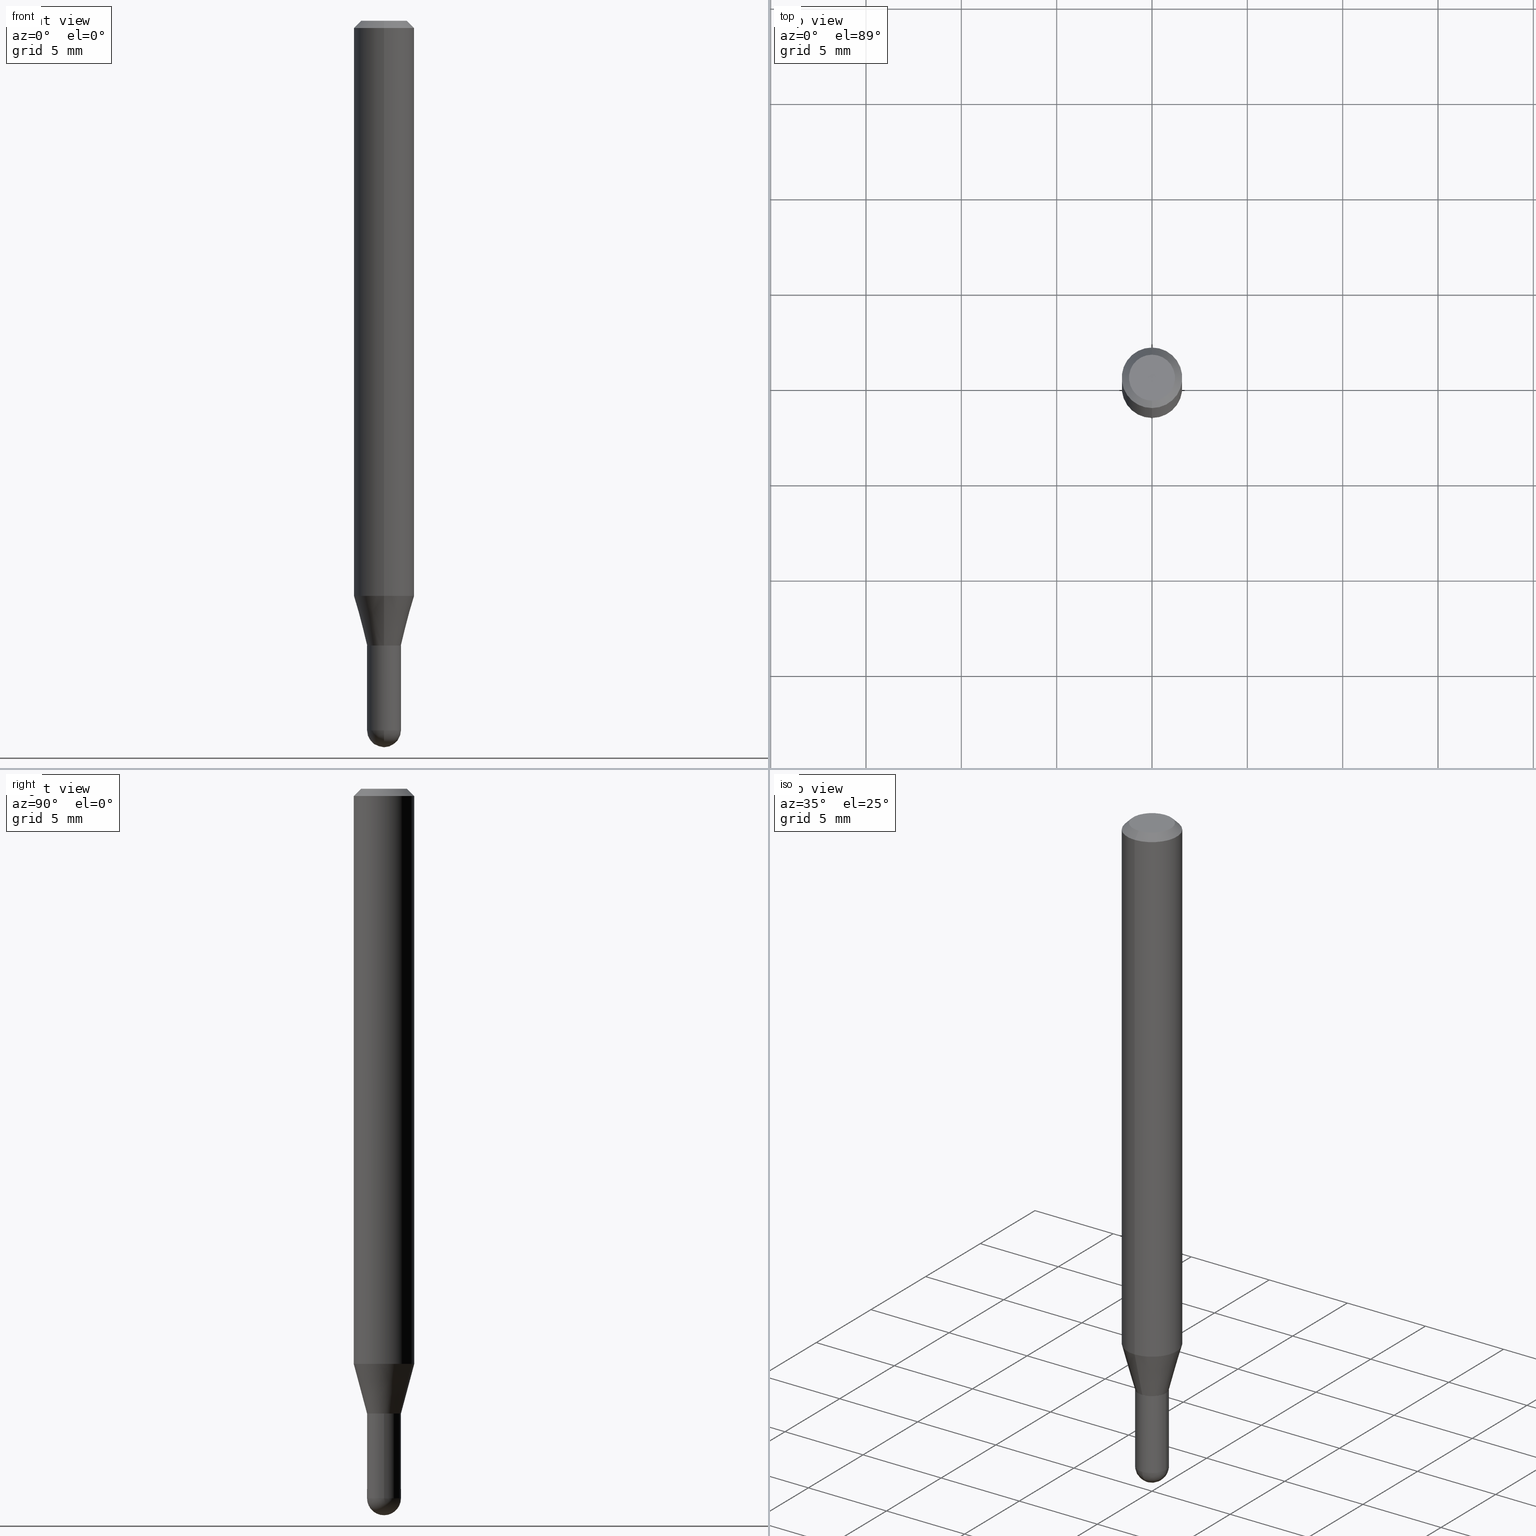
[diagram: canonical four-view strip — front | top / right | iso, engineering-drawing reading convention]
A machine part, canonical four-view strip (front | top / right | iso — engineering-drawing reading convention). The complete STEP part file that produces these views, byte-faithful:
ISO-10303-21;
HEADER;
FILE_DESCRIPTION (( 'STEP AP203' ),
    '1' );
FILE_NAME ('04441.STEP',
    '2024-03-08T19:33:33',
    ( '' ),
    ( '' ),
    'SwSTEP 2.0',
    'SolidWorks 2023',
    '' );
FILE_SCHEMA (( 'CONFIG_CONTROL_DESIGN' ));
ENDSEC;

DATA;
#1 = EDGE_CURVE ( 'NONE', #69, #152, #226, .T. ) ;
#2 = DIRECTION ( 'NONE',  ( -6.982962677686265922E-15, -1.000000000000000000, 3.483106191921935554E-15 ) ) ;
#3 = FACE_OUTER_BOUND ( 'NONE', #250, .T. ) ;
#4 =( LENGTH_UNIT ( ) NAMED_UNIT ( * ) SI_UNIT ( $, .METRE. ) );
#5 = PLANE ( 'NONE',  #210 ) ;
#6 = ADVANCED_FACE ( 'NONE', ( #47 ), #305, .T. ) ;
#7 = VECTOR ( 'NONE', #500, 39.37007874015748143 ) ;
#8 = CARTESIAN_POINT ( 'NONE',  ( 3.154508998517573642E-29, -4.504219665816401334E-15, -1.290000000000000480 ) ) ;
#9 = PERSON_AND_ORGANIZATION ( #112, #90 ) ;
#10 = AXIS2_PLACEMENT_3D ( 'NONE', #114, #147, #417 ) ;
#11 = EDGE_CURVE ( 'NONE', #300, #98, #400, .T. ) ;
#12 = EDGE_LOOP ( 'NONE', ( #110, #325, #220, #182, #302 ) ) ;
#13 = ADVANCED_FACE ( 'NONE', ( #194 ), #5, .F. ) ;
#14 = DATE_AND_TIME ( #52, #324 ) ;
#15 = CC_DESIGN_APPROVAL ( #491, ( #115 ) ) ;
#16 = CONICAL_SURFACE ( 'NONE', #238, 0.03450000000000000289, 0.7853981633969275844 ) ;
#17 = AXIS2_PLACEMENT_3D ( 'NONE', #499, #215, #20 ) ;
#18 = ORIENTED_EDGE ( 'NONE', *, *, #405, .F. ) ;
#19 = ADVANCED_FACE ( 'NONE', ( #353 ), #16, .T. ) ;
#20 = DIRECTION ( 'NONE',  ( -6.982962677686266711E-15, -1.000000000000000000, 3.491643151795659524E-15 ) ) ;
#21 = VERTEX_POINT ( 'NONE', #49 ) ;
#22 = CC_DESIGN_DATE_AND_TIME_ASSIGNMENT ( #25, #496, ( #115 ) ) ;
#23 = LINE ( 'NONE', #244, #470 ) ;
#24 = DIRECTION ( 'NONE',  ( -2.445355812804319673E-29, 3.491643151795659130E-15, 1.000000000000000000 ) ) ;
#25 = DATE_AND_TIME ( #61, #211 ) ;
#26 = AXIS2_PLACEMENT_3D ( 'NONE', #471, #217, #377 ) ;
#27 = APPLICATION_CONTEXT ( 'configuration controlled 3d designs of mechanical parts and assemblies' ) ;
#28 = CARTESIAN_POINT ( 'NONE',  ( 0.03500000000000000333, -4.748414620826678245E-15, -1.290000000000000258 ) ) ;
#29 = VECTOR ( 'NONE', #72, 39.37007874015748143 ) ;
#30 = DIRECTION ( 'NONE',  ( -2.445355812804319953E-29, 3.491643151795659524E-15, 1.000000000000000000 ) ) ;
#31 = DIRECTION ( 'NONE',  ( -2.445355812804319673E-29, 3.491643151795659130E-15, 1.000000000000000000 ) ) ;
#32 = ORIENTED_EDGE ( 'NONE', *, *, #68, .F. ) ;
#33 = DIRECTION ( 'NONE',  ( 7.105427357601001859E-15, 1.000000000000000000, 0.000000000000000000 ) ) ;
#34 = CARTESIAN_POINT ( 'NONE',  ( 3.154508998517573642E-29, -4.504219665816401334E-15, -1.290000000000000480 ) ) ;
#35 = MANIFOLD_SOLID_BREP ( 'Body-Move/Copy2[2]', #481 ) ;
#36 = ORIENTED_EDGE ( 'NONE', *, *, #121, .T. ) ;
#37 = CARTESIAN_POINT ( 'NONE',  ( 3.582611801061224486E-29, -5.115020161405207405E-15, -1.464999999999999858 ) ) ;
#38 = DIRECTION ( 'NONE',  ( -6.982962677686265922E-15, -1.000000000000000000, 3.491643151795659130E-15 ) ) ;
#39 = CIRCLE ( 'NONE', #231, 0.03500000000000000333 ) ;
#40 = EDGE_LOOP ( 'NONE', ( #443, #365, #66, #358 ) ) ;
#41 = EDGE_CURVE ( 'NONE', #21, #381, #189, .T. ) ;
#42 = AXIS2_PLACEMENT_3D ( 'NONE', #368, #407, #38 ) ;
#43 = DIRECTION ( 'NONE',  ( -1.807323732225383782E-15, -0.2588190451025258465, 0.9659258262890669799 ) ) ;
#44 = EDGE_LOOP ( 'NONE', ( #223, #362, #94, #494 ) ) ;
#45 = CARTESIAN_POINT ( 'NONE',  ( 3.668033719206495817E-31, -5.237464727693512311E-17, -0.01500000000000006710 ) ) ;
#46 = CC_DESIGN_PERSON_AND_ORGANIZATION_ASSIGNMENT ( #315, #277, ( #476 ) ) ;
#47 = FACE_OUTER_BOUND ( 'NONE', #12, .T. ) ;
#48 = CARTESIAN_POINT ( 'NONE',  ( 3.579618719049097467E-29, -5.119306425202223514E-15, -1.465000000000000080 ) ) ;
#49 = CARTESIAN_POINT ( 'NONE',  ( 3.463895836830799138E-16, 0.03499999999999569428, -1.290000000000000258 ) ) ;
#50 = FACE_OUTER_BOUND ( 'NONE', #268, .T. ) ;
#51 = CIRCLE ( 'NONE', #477, 0.06250000000000000000 ) ;
#52 = CALENDAR_DATE ( 2024, 8, 3 ) ;
#53 = EDGE_CURVE ( 'NONE', #21, #74, #155, .T. ) ;
#54 = APPROVAL_STATUS ( 'not_yet_approved' ) ;
#55 = ADVANCED_FACE ( 'NONE', ( #233 ), #310, .T. ) ;
#56 = ADVANCED_FACE ( 'NONE', ( #3 ), #257, .F. ) ;
#57 = APPLICATION_PROTOCOL_DEFINITION ( 'international standard', 'config_control_design', 1994, #27 ) ;
#58 = DIRECTION ( 'NONE',  ( -2.445468806185136597E-29, 3.491481338843145583E-15, 1.000000000000000000 ) ) ;
#59 = AXIS2_PLACEMENT_3D ( 'NONE', #37, #260, #230 ) ;
#60 = ORIENTED_EDGE ( 'NONE', *, *, #431, .F. ) ;
#61 = CALENDAR_DATE ( 2024, 8, 3 ) ;
#62 = CARTESIAN_POINT ( 'NONE',  ( 3.154508998517572521E-29, -4.504219665816400546E-15, -1.290000000000000258 ) ) ;
#63 = DIRECTION ( 'NONE',  ( -6.982962677686265922E-15, -1.000000000000000000, 4.370956789862821150E-15 ) ) ;
#64 = DIRECTION ( 'NONE',  ( -2.445355812804319673E-29, 3.491643151795659130E-15, 1.000000000000000000 ) ) ;
#65 = CARTESIAN_POINT ( 'NONE',  ( -0.03500000000000000333, -4.560825586740397161E-15, -1.464999999999999858 ) ) ;
#66 = ORIENTED_EDGE ( 'NONE', *, *, #351, .T. ) ;
#67 = CARTESIAN_POINT ( 'NONE',  ( 0.000000000000000000, 0.000000000000000000, 0.000000000000000000 ) ) ;
#68 = EDGE_CURVE ( 'NONE', #385, #280, #254, .T. ) ;
#69 = VERTEX_POINT ( 'NONE', #364 ) ;
#70 = AXIS2_PLACEMENT_3D ( 'NONE', #289, #461, #219 ) ;
#71 = CARTESIAN_POINT ( 'NONE',  ( 4.364351673553919652E-16, 0.06249999999999995143, -0.01500000000000028394 ) ) ;
#72 = DIRECTION ( 'NONE',  ( -4.851104656540964275E-15, -0.7071067811865500152, -0.7071067811865450192 ) ) ;
#73 = ADVANCED_FACE ( 'NONE', ( #97 ), #92, .T. ) ;
#74 = VERTEX_POINT ( 'NONE', #213 ) ;
#75 = CARTESIAN_POINT ( 'NONE',  ( 3.154508998517572521E-29, -4.504219665816400546E-15, -1.290000000000000258 ) ) ;
#76 = FACE_OUTER_BOUND ( 'NONE', #172, .T. ) ;
#77 = ORIENTED_EDGE ( 'NONE', *, *, #387, .F. ) ;
#78 = CARTESIAN_POINT ( 'NONE',  ( 3.840629472727447874E-16, 0.04749999999999999362, -2.313455976474456035E-16 ) ) ;
#79 =( GEOMETRIC_REPRESENTATION_CONTEXT ( 3 ) GLOBAL_UNCERTAINTY_ASSIGNED_CONTEXT ( ( #408 ) ) GLOBAL_UNIT_ASSIGNED_CONTEXT ( ( #313, #129, #357 ) ) REPRESENTATION_CONTEXT ( 'NONE', 'WORKASPACE' ) );
#80 = EDGE_LOOP ( 'NONE', ( #164, #422, #360, #145 ) ) ;
#81 = CIRCLE ( 'NONE', #355, 0.03499999999999964945 ) ;
#82 = DIRECTION ( 'NONE',  ( -2.445355812804319673E-29, 3.491643151795659130E-15, 1.000000000000000000 ) ) ;
#83 = DIRECTION ( 'NONE',  ( -2.445355812804319953E-29, 3.491643151795659524E-15, 1.000000000000000000 ) ) ;
#84 = DIRECTION ( 'NONE',  ( -6.982962677686265133E-15, -1.000000000000000000, 0.000000000000000000 ) ) ;
#85 = ADVANCED_FACE ( 'NONE', ( #76 ), #135, .T. ) ;
#86 = DIRECTION ( 'NONE',  ( -6.982962677686267499E-15, -1.000000000000000000, 0.000000000000000000 ) ) ;
#87 = CC_DESIGN_SECURITY_CLASSIFICATION ( #115, ( #476 ) ) ;
#88 = VECTOR ( 'NONE', #449, 39.37007874015748143 ) ;
#89 = AXIS2_PLACEMENT_3D ( 'NONE', #379, #473, #84 ) ;
#90 = ORGANIZATION ( 'UNSPECIFIED', 'UNSPECIFIED', '' ) ;
#91 = PERSON_AND_ORGANIZATION_ROLE ( 'classification_officer' ) ;
#92 = CONICAL_SURFACE ( 'NONE', #118, 0.03450000000000000289, 0.7853981633969275844 ) ;
#93 = EDGE_CURVE ( 'NONE', #139, #74, #284, .T. ) ;
#94 = ORIENTED_EDGE ( 'NONE', *, *, #487, .F. ) ;
#95 = EDGE_LOOP ( 'NONE', ( #485, #426 ) ) ;
#96 = DIRECTION ( 'NONE',  ( 4.937700262164548042E-15, 0.7071067811865451302, -0.7071067811865499042 ) ) ;
#97 = FACE_OUTER_BOUND ( 'NONE', #40, .T. ) ;
#98 = VERTEX_POINT ( 'NONE', #293 ) ;
#99 = CARTESIAN_POINT ( 'NONE',  ( 2.486899575160709326E-16, 0.03499999999999489630, -1.464999999999999858 ) ) ;
#100 = CIRCLE ( 'NONE', #89, 0.03450000000000000289 ) ;
#101 = DIRECTION ( 'NONE',  ( -2.445355812804319673E-29, 3.491643151795659130E-15, 1.000000000000000000 ) ) ;
#102 = CLOSED_SHELL ( 'NONE', ( #232, #395, #13, #55, #6 ) ) ;
#103 = ORIENTED_EDGE ( 'NONE', *, *, #253, .F. ) ;
#104 = LINE ( 'NONE', #295, #255 ) ;
#105 = DIRECTION ( 'NONE',  ( -6.982962677686265922E-15, -1.000000000000000000, 0.000000000000000000 ) ) ;
#106 = PERSON_AND_ORGANIZATION ( #112, #90 ) ;
#107 = ORIENTED_EDGE ( 'NONE', *, *, #1, .T. ) ;
#108 = CARTESIAN_POINT ( 'NONE',  ( -2.409122123801446155E-16, -0.03450000000000450623, -1.290000000000000480 ) ) ;
#109 = CARTESIAN_POINT ( 'NONE',  ( 2.451372438372660898E-16, 0.03449999999999549954, -1.290000000000000480 ) ) ;
#110 = ORIENTED_EDGE ( 'NONE', *, *, #373, .F. ) ;
#111 = CARTESIAN_POINT ( 'NONE',  ( 4.440892098500914096E-16, 0.06249999999999581585, -1.187368602791860628 ) ) ;
#112 = PERSON ( 'UNSPECIFIED', 'UNSPECIFIED', 'UNSPECIFIED', ('UNSPECIFIED'), ('UNSPECIFIED'), ('UNSPECIFIED') ) ;
#113 = ORIENTED_EDGE ( 'NONE', *, *, #330, .T. ) ;
#114 = CARTESIAN_POINT ( 'NONE',  ( 0.000000000000000000, 0.000000000000000000, 0.000000000000000000 ) ) ;
#115 = SECURITY_CLASSIFICATION ( '', '', #130 ) ;
#116 = ORIENTED_EDGE ( 'NONE', *, *, #128, .T. ) ;
#117 = ADVANCED_FACE ( 'NONE', ( #323 ), #144, .F. ) ;
#118 = AXIS2_PLACEMENT_3D ( 'NONE', #34, #171, #414 ) ;
#119 = DIRECTION ( 'NONE',  ( -2.445468806185136597E-29, 3.491481338843145583E-15, 1.000000000000000000 ) ) ;
#120 = EDGE_LOOP ( 'NONE', ( #444, #261, #404, #246, #243 ) ) ;
#121 = EDGE_CURVE ( 'NONE', #152, #74, #81, .T. ) ;
#122 = ADVANCED_BREP_SHAPE_REPRESENTATION ( '04441', ( #192, #35, #133 ), #79 ) ;
#123 = DIRECTION ( 'NONE',  ( -2.445355812804319673E-29, 3.491643151795659130E-15, 1.000000000000000000 ) ) ;
#124 = DIRECTION ( 'NONE',  ( -2.445468806185136877E-29, 3.491481338843145188E-15, 1.000000000000000000 ) ) ;
#125 = AXIS2_PLACEMENT_3D ( 'NONE', #299, #123, #225 ) ;
#126 = CARTESIAN_POINT ( 'NONE',  ( 3.579618719049097467E-29, -5.119306425202223514E-15, -1.465000000000000080 ) ) ;
#127 = AXIS2_PLACEMENT_3D ( 'NONE', #291, #245, #63 ) ;
#128 = EDGE_CURVE ( 'NONE', #187, #388, #190, .T. ) ;
#129 =( NAMED_UNIT ( * ) PLANE_ANGLE_UNIT ( ) SI_UNIT ( $, .RADIAN. ) );
#130 = SECURITY_CLASSIFICATION_LEVEL ( 'unclassified' ) ;
#131 = CIRCLE ( 'NONE', #17, 0.04749999999999999362 ) ;
#132 = CARTESIAN_POINT ( 'NONE',  ( 4.440892098500919026E-16, 0.06249999999999995837, -0.01500000000000028394 ) ) ;
#133 = AXIS2_PLACEMENT_3D ( 'NONE', #311, #356, #236 ) ;
#134 = LINE ( 'NONE', #287, #88 ) ;
#135 = CYLINDRICAL_SURFACE ( 'NONE', #42, 0.06250000000000000000 ) ;
#136 = AXIS2_PLACEMENT_3D ( 'NONE', #370, #58, #143 ) ;
#137 = VERTEX_POINT ( 'NONE', #65 ) ;
#138 = FACE_OUTER_BOUND ( 'NONE', #150, .T. ) ;
#139 = VERTEX_POINT ( 'NONE', #174 ) ;
#140 = CARTESIAN_POINT ( 'NONE',  ( -4.364351673553628760E-16, -0.06250000000000417721, -1.187368602791860184 ) ) ;
#141 = VECTOR ( 'NONE', #83, 39.37007874015748143 ) ;
#142 = ORIENTED_EDGE ( 'NONE', *, *, #93, .T. ) ;
#143 = DIRECTION ( 'NONE',  ( 1.000000000000000000, -6.982962677686276966E-15, 0.000000000000000000 ) ) ;
#144 = PLANE ( 'NONE',  #70 ) ;
#145 = ORIENTED_EDGE ( 'NONE', *, *, #1, .F. ) ;
#146 = CIRCLE ( 'NONE', #59, 0.03500000000000000333 ) ;
#147 = DIRECTION ( 'NONE',  ( -2.445355812804319673E-29, 3.491643151795659130E-15, 1.000000000000000000 ) ) ;
#148 = ORIENTED_EDGE ( 'NONE', *, *, #248, .T. ) ;
#149 = DIRECTION ( 'NONE',  ( -6.982962677686265922E-15, -1.000000000000000000, 3.483106191921935554E-15 ) ) ;
#150 = EDGE_LOOP ( 'NONE', ( #286, #497, #338, #462 ) ) ;
#151 = DIRECTION ( 'NONE',  ( -2.445468806185136597E-29, 3.491481338843145583E-15, 1.000000000000000000 ) ) ;
#152 = VERTEX_POINT ( 'NONE', #447 ) ;
#153 = AXIS2_PLACEMENT_3D ( 'NONE', #493, #173, #249 ) ;
#154 = CARTESIAN_POINT ( 'NONE',  ( 0.03500000000000000333, -5.053919237975452413E-15, -1.464999999999999858 ) ) ;
#155 = LINE ( 'NONE', #309, #183 ) ;
#156 = CARTESIAN_POINT ( 'NONE',  ( 3.154508998517572521E-29, -4.504219665816400546E-15, -1.290000000000000258 ) ) ;
#157 = PRODUCT_DEFINITION ( 'UNKNOWN', '', #476, #442 ) ;
#158 = APPROVAL_PERSON_ORGANIZATION ( #106, #491, #177 ) ;
#159 = PERSON_AND_ORGANIZATION ( #112, #90 ) ;
#160 = DIRECTION ( 'NONE',  ( -2.445355812804319673E-29, 3.491643151795659130E-15, 1.000000000000000000 ) ) ;
#161 = CIRCLE ( 'NONE', #441, 0.03450000000000000289 ) ;
#162 = COORDINATED_UNIVERSAL_TIME_OFFSET ( 5, 0, .BEHIND. ) ;
#163 = EDGE_CURVE ( 'NONE', #329, #381, #393, .T. ) ;
#164 = ORIENTED_EDGE ( 'NONE', *, *, #432, .F. ) ;
#165 = CC_DESIGN_APPROVAL ( #430, ( #476 ) ) ;
#166 = DATE_TIME_ROLE ( 'creation_date' ) ;
#167 = ORIENTED_EDGE ( 'NONE', *, *, #482, .T. ) ;
#168 = EDGE_CURVE ( 'NONE', #300, #319, #306, .T. ) ;
#169 = ORIENTED_EDGE ( 'NONE', *, *, #163, .T. ) ;
#170 = DIRECTION ( 'NONE',  ( -2.445355812804319673E-29, 3.491643151795659130E-15, 1.000000000000000000 ) ) ;
#171 = DIRECTION ( 'NONE',  ( -2.445355812804319673E-29, 3.491643151795659130E-15, 1.000000000000000000 ) ) ;
#172 = EDGE_LOOP ( 'NONE', ( #103, #148, #209, #18 ) ) ;
#173 = DIRECTION ( 'NONE',  ( -2.445355812804319673E-29, 3.491643151795659130E-15, 1.000000000000000000 ) ) ;
#174 = CARTESIAN_POINT ( 'NONE',  ( 2.469136006766646655E-16, 0.03449999999999549954, -1.290000000000000480 ) ) ;
#175 = ORIENTED_EDGE ( 'NONE', *, *, #53, .F. ) ;
#176 = CYLINDRICAL_SURFACE ( 'NONE', #288, 0.03499999999999992700 ) ;
#177 = APPROVAL_ROLE ( '' ) ;
#178 = CARTESIAN_POINT ( 'NONE',  ( 3.579618719049097467E-29, -5.119306425202223514E-15, -1.465000000000000080 ) ) ;
#179 = CIRCLE ( 'NONE', #454, 0.03500000000000019762 ) ;
#180 = CC_DESIGN_PERSON_AND_ORGANIZATION_ASSIGNMENT ( #276, #359, ( #157 ) ) ;
#181 = CALENDAR_DATE ( 2024, 8, 3 ) ;
#182 = ORIENTED_EDGE ( 'NONE', *, *, #464, .T. ) ;
#183 = VECTOR ( 'NONE', #270, 39.37007874015748143 ) ;
#184 = CARTESIAN_POINT ( 'NONE',  ( 3.582611801061224486E-29, -5.115020161405207405E-15, -1.464999999999999858 ) ) ;
#185 = CARTESIAN_POINT ( 'NONE',  ( -2.444036937190187827E-16, -0.03499999999999992700, 1.222075103128478112E-16 ) ) ;
#186 = PLANE ( 'NONE',  #316 ) ;
#187 = VERTEX_POINT ( 'NONE', #28 ) ;
#188 = DIRECTION ( 'NONE',  ( -6.982962677686265133E-15, -1.000000000000000000, 0.000000000000000000 ) ) ;
#189 = LINE ( 'NONE', #347, #354 ) ;
#190 = CIRCLE ( 'NONE', #484, 0.03500000000000000333 ) ;
#191 = CARTESIAN_POINT ( 'NONE',  ( 0.03500000000000000333, -2.444036937190193250E-16, 1.706661871528577808E-30 ) ) ;
#192 = MANIFOLD_SOLID_BREP ( 'Body-Move/Copy2[1]', #102 ) ;
#193 = APPROVAL_ROLE ( '' ) ;
#194 = FACE_OUTER_BOUND ( 'NONE', #458, .T. ) ;
#195 = COORDINATED_UNIVERSAL_TIME_OFFSET ( 5, 0, .BEHIND. ) ;
#196 = CIRCLE ( 'NONE', #136, 0.03500000000000000333 ) ;
#197 = ADVANCED_FACE ( 'NONE', ( #202 ), #176, .F. ) ;
#198 = COORDINATED_UNIVERSAL_TIME_OFFSET ( 5, 0, .BEHIND. ) ;
#199 = ORIENTED_EDGE ( 'NONE', *, *, #405, .T. ) ;
#200 = APPROVAL_DATE_TIME ( #396, #242 ) ;
#201 = ORIENTED_EDGE ( 'NONE', *, *, #423, .T. ) ;
#202 = FACE_OUTER_BOUND ( 'NONE', #80, .T. ) ;
#203 = CIRCLE ( 'NONE', #503, 0.06250000000000000000 ) ;
#204 = ORIENTED_EDGE ( 'NONE', *, *, #423, .F. ) ;
#205 = CARTESIAN_POINT ( 'NONE',  ( 0.000000000000000000, 0.000000000000000000, 0.000000000000000000 ) ) ;
#206 = ORIENTED_EDGE ( 'NONE', *, *, #253, .T. ) ;
#207 = LINE ( 'NONE', #445, #224 ) ;
#208 = CIRCLE ( 'NONE', #125, 0.03500000000000019762 ) ;
#209 = ORIENTED_EDGE ( 'NONE', *, *, #343, .T. ) ;
#210 = AXIS2_PLACEMENT_3D ( 'NONE', #428, #314, #390 ) ;
#211 = LOCAL_TIME ( 14, 33, 33.00000000000000000, #237 ) ;
#212 = DIRECTION ( 'NONE',  ( -6.982962677686265133E-15, -1.000000000000000000, 3.491643151795659130E-15 ) ) ;
#213 = CARTESIAN_POINT ( 'NONE',  ( 2.486899575160632412E-16, 0.03499999999999502814, -1.289500000000000313 ) ) ;
#214 = ORIENTED_EDGE ( 'NONE', *, *, #121, .F. ) ;
#215 = DIRECTION ( 'NONE',  ( -2.445355812804319673E-29, 3.491643151795659130E-15, 1.000000000000000000 ) ) ;
#216 = APPROVAL_STATUS ( 'not_yet_approved' ) ;
#217 = DIRECTION ( 'NONE',  ( -2.445468806185136597E-29, 3.491481338843145583E-15, 1.000000000000000000 ) ) ;
#218 = LINE ( 'NONE', #427, #369 ) ;
#219 = DIRECTION ( 'NONE',  ( 6.982962677686265922E-15, 1.000000000000000000, -3.491643151795659524E-15 ) ) ;
#220 = ORIENTED_EDGE ( 'NONE', *, *, #387, .T. ) ;
#221 = EDGE_CURVE ( 'NONE', #448, #385, #131, .T. ) ;
#222 = FACE_OUTER_BOUND ( 'NONE', #333, .T. ) ;
#223 = ORIENTED_EDGE ( 'NONE', *, *, #168, .F. ) ;
#224 = VECTOR ( 'NONE', #366, 39.37007874015748143 ) ;
#225 = DIRECTION ( 'NONE',  ( -6.982962677686265133E-15, -1.000000000000000000, 0.000000000000000000 ) ) ;
#226 = LINE ( 'NONE', #185, #141 ) ;
#227 = DIRECTION ( 'NONE',  ( -2.445468806185136597E-29, 3.491481338843145583E-15, 1.000000000000000000 ) ) ;
#228 = EDGE_CURVE ( 'NONE', #385, #448, #337, .T. ) ;
#229 = DIRECTION ( 'NONE',  ( -6.982962677686265133E-15, -1.000000000000000000, 0.000000000000000000 ) ) ;
#230 = DIRECTION ( 'NONE',  ( 1.000000000000000000, -6.982962677686276966E-15, 0.000000000000000000 ) ) ;
#231 = AXIS2_PLACEMENT_3D ( 'NONE', #184, #227, #342 ) ;
#232 = ADVANCED_FACE ( 'NONE', ( #495 ), #331, .T. ) ;
#233 = FACE_OUTER_BOUND ( 'NONE', #44, .T. ) ;
#234 = AXIS2_PLACEMENT_3D ( 'NONE', #126, #235, #105 ) ;
#235 = DIRECTION ( 'NONE',  ( 1.000000000000000000, -6.982962677686265922E-15, 4.883557194083112340E-29 ) ) ;
#236 = DIRECTION ( 'NONE',  ( 1.000000000000000000, 0.000000000000000000, 0.000000000000000000 ) ) ;
#237 = COORDINATED_UNIVERSAL_TIME_OFFSET ( 5, 0, .BEHIND. ) ;
#238 = AXIS2_PLACEMENT_3D ( 'NONE', #8, #160, #229 ) ;
#239 = MECHANICAL_CONTEXT ( 'NONE', #27, 'mechanical' ) ;
#240 = EDGE_CURVE ( 'NONE', #388, #187, #196, .T. ) ;
#241 = EDGE_LOOP ( 'NONE', ( #201, #142, #214, #465 ) ) ;
#242 = APPROVAL ( #54, 'UNSPECIFIED' ) ;
#243 = ORIENTED_EDGE ( 'NONE', *, *, #479, .T. ) ;
#244 = CARTESIAN_POINT ( 'NONE',  ( -2.409122123801446155E-16, -0.03450000000000450623, -1.290000000000000480 ) ) ;
#245 = DIRECTION ( 'NONE',  ( -2.445355812804319673E-29, 3.491643151795659130E-15, 1.000000000000000000 ) ) ;
#246 = ORIENTED_EDGE ( 'NONE', *, *, #464, .F. ) ;
#247 = EDGE_LOOP ( 'NONE', ( #416, #256, #317, #399 ) ) ;
#248 = EDGE_CURVE ( 'NONE', #381, #329, #51, .T. ) ;
#249 = DIRECTION ( 'NONE',  ( -6.982962677686265133E-15, -1.000000000000000000, 0.000000000000000000 ) ) ;
#250 = EDGE_LOOP ( 'NONE', ( #175, #259, #107, #36 ) ) ;
#251 = AXIS2_PLACEMENT_3D ( 'NONE', #466, #151, #303 ) ;
#252 = FACE_OUTER_BOUND ( 'NONE', #409, .T. ) ;
#253 = EDGE_CURVE ( 'NONE', #381, #282, #104, .T. ) ;
#254 = LINE ( 'NONE', #489, #29 ) ;
#255 = VECTOR ( 'NONE', #30, 39.37007874015748143 ) ;
#256 = ORIENTED_EDGE ( 'NONE', *, *, #41, .T. ) ;
#257 = CYLINDRICAL_SURFACE ( 'NONE', #264, 0.03499999999999992700 ) ;
#258 = DATE_AND_TIME ( #181, #272 ) ;
#259 = ORIENTED_EDGE ( 'NONE', *, *, #437, .F. ) ;
#260 = DIRECTION ( 'NONE',  ( -2.445468806185136597E-29, 3.491481338843145583E-15, 1.000000000000000000 ) ) ;
#261 = ORIENTED_EDGE ( 'NONE', *, *, #373, .T. ) ;
#262 = DIRECTION ( 'NONE',  ( -6.982962677686265922E-15, -1.000000000000000000, 0.000000000000000000 ) ) ;
#263 = VERTEX_POINT ( 'NONE', #108 ) ;
#264 = AXIS2_PLACEMENT_3D ( 'NONE', #376, #24, #456 ) ;
#265 = CC_DESIGN_PERSON_AND_ORGANIZATION_ASSIGNMENT ( #159, #480, ( #476 ) ) ;
#266 = DIRECTION ( 'NONE',  ( 1.000000000000000000, -6.982962677686276966E-15, 0.000000000000000000 ) ) ;
#267 = DIMENSIONAL_EXPONENTS ( 1.000000000000000000, 0.000000000000000000, 0.000000000000000000, 0.000000000000000000, 0.000000000000000000, 0.000000000000000000, 0.000000000000000000 ) ;
#268 = EDGE_LOOP ( 'NONE', ( #169, #206, #467, #341 ) ) ;
#269 = FACE_OUTER_BOUND ( 'NONE', #453, .T. ) ;
#270 = DIRECTION ( 'NONE',  ( -2.445355812804319953E-29, 3.491643151795659524E-15, 1.000000000000000000 ) ) ;
#271 = DATE_AND_TIME ( #478, #446 ) ;
#272 = LOCAL_TIME ( 14, 33, 33.00000000000000000, #332 ) ;
#273 = AXIS2_PLACEMENT_3D ( 'NONE', #460, #64, #326 ) ;
#274 = CALENDAR_DATE ( 2024, 8, 3 ) ;
#275 = PRODUCT_DEFINITION_SHAPE ( 'NONE', 'NONE',  #157 ) ;
#276 = PERSON_AND_ORGANIZATION ( #112, #90 ) ;
#277 = PERSON_AND_ORGANIZATION_ROLE ( 'creator' ) ;
#278 = AXIS2_PLACEMENT_3D ( 'NONE', #178, #502, #298 ) ;
#279 = AXIS2_PLACEMENT_3D ( 'NONE', #339, #389, #149 ) ;
#280 = VERTEX_POINT ( 'NONE', #363 ) ;
#281 = APPLICATION_CONTEXT ( 'configuration controlled 3d designs of mechanical parts and assemblies' ) ;
#282 = VERTEX_POINT ( 'NONE', #132 ) ;
#283 = LINE ( 'NONE', #71, #511 ) ;
#284 = LINE ( 'NONE', #109, #7 ) ;
#285 = AXIS2_PLACEMENT_3D ( 'NONE', #469, #119, #266 ) ;
#286 = ORIENTED_EDGE ( 'NONE', *, *, #41, .F. ) ;
#287 = CARTESIAN_POINT ( 'NONE',  ( -0.03500000000000000333, 2.486899575160350887E-16, -1.721627281589217108E-30 ) ) ;
#288 = AXIS2_PLACEMENT_3D ( 'NONE', #67, #292, #212 ) ;
#289 = CARTESIAN_POINT ( 'NONE',  ( 3.316907271900976096E-16, 0.04749999999999999362, -1.985993236788697051E-16 ) ) ;
#290 = CARTESIAN_POINT ( 'NONE',  ( 3.663713586259513245E-29, -5.243651403960241551E-15, -1.500000000000000222 ) ) ;
#291 = CARTESIAN_POINT ( 'NONE',  ( 2.903538714778418821E-29, -4.145867450595379478E-15, -1.187368602791860406 ) ) ;
#292 = DIRECTION ( 'NONE',  ( -2.445355812804319673E-29, 3.491643151795659130E-15, 1.000000000000000000 ) ) ;
#293 = CARTESIAN_POINT ( 'NONE',  ( -2.444036937189835304E-16, -0.03500000000000512423, -1.464999999999999858 ) ) ;
#294 = ORIENTED_EDGE ( 'NONE', *, *, #68, .T. ) ;
#295 = CARTESIAN_POINT ( 'NONE',  ( 4.440892098500625669E-16, 0.06250000000000000000, -2.182276969872286956E-16 ) ) ;
#296 = SHAPE_DEFINITION_REPRESENTATION ( #275, #122 ) ;
#297 = AXIS2_PLACEMENT_3D ( 'NONE', #205, #375, #490 ) ;
#298 = DIRECTION ( 'NONE',  ( -6.982962677686265922E-15, -1.000000000000000000, 0.000000000000000000 ) ) ;
#299 = CARTESIAN_POINT ( 'NONE',  ( 3.154508998517572521E-29, -4.504219665816400546E-15, -1.290000000000000258 ) ) ;
#300 = VERTEX_POINT ( 'NONE', #290 ) ;
#301 = CARTESIAN_POINT ( 'NONE',  ( -0.03500000000000000333, -4.560825586740397161E-15, -1.290000000000000258 ) ) ;
#302 = ORIENTED_EDGE ( 'NONE', *, *, #240, .F. ) ;
#303 = DIRECTION ( 'NONE',  ( 1.000000000000000000, -6.982962677686276966E-15, 0.000000000000000000 ) ) ;
#304 = APPROVAL_PERSON_ORGANIZATION ( #486, #430, #193 ) ;
#305 = CYLINDRICAL_SURFACE ( 'NONE', #26, 0.03500000000000000333 ) ;
#306 = CIRCLE ( 'NONE', #384, 0.03500000000000001721 ) ;
#307 = ADVANCED_FACE ( 'NONE', ( #252 ), #459, .T. ) ;
#308 = CYLINDRICAL_SURFACE ( 'NONE', #10, 0.06250000000000000000 ) ;
#309 = CARTESIAN_POINT ( 'NONE',  ( 2.486899575160344971E-16, 0.03499999999999992700, -1.222075103128478112E-16 ) ) ;
#310 = SPHERICAL_SURFACE ( 'NONE', #234, 0.03500000000000001721 ) ;
#311 = CARTESIAN_POINT ( 'NONE',  ( 0.000000000000000000, 0.000000000000000000, 0.000000000000000000 ) ) ;
#312 = ADVANCED_FACE ( 'NONE', ( #413 ), #425, .T. ) ;
#313 =( CONVERSION_BASED_UNIT ( 'INCH', #397 ) LENGTH_UNIT ( ) NAMED_UNIT ( #267 ) );
#314 = DIRECTION ( 'NONE',  ( 2.438088387897960049E-29, -3.491481338843145188E-15, -1.000000000000000000 ) ) ;
#315 = PERSON_AND_ORGANIZATION ( #112, #90 ) ;
#316 = AXIS2_PLACEMENT_3D ( 'NONE', #75, #383, #507 ) ;
#317 = ORIENTED_EDGE ( 'NONE', *, *, #163, .F. ) ;
#318 = APPROVAL_ROLE ( '' ) ;
#319 = VERTEX_POINT ( 'NONE', #99 ) ;
#320 = CARTESIAN_POINT ( 'NONE',  ( 2.903538714778418821E-29, -4.145867450595379478E-15, -1.187368602791860406 ) ) ;
#321 = ORIENTED_EDGE ( 'NONE', *, *, #11, .F. ) ;
#322 = DIRECTION ( 'NONE',  ( -6.982962677686265133E-15, -1.000000000000000000, 0.000000000000000000 ) ) ;
#323 = FACE_OUTER_BOUND ( 'NONE', #95, .T. ) ;
#324 = LOCAL_TIME ( 14, 33, 33.00000000000000000, #195 ) ;
#325 = ORIENTED_EDGE ( 'NONE', *, *, #487, .T. ) ;
#326 = DIRECTION ( 'NONE',  ( -6.982962677686266711E-15, -1.000000000000000000, 3.491643151795659524E-15 ) ) ;
#327 = DIRECTION ( 'NONE',  ( -2.445468806185136597E-29, 3.491481338843145583E-15, 1.000000000000000000 ) ) ;
#328 = DIRECTION ( 'NONE',  ( 2.445355812804319673E-29, -3.491643151795659130E-15, -1.000000000000000000 ) ) ;
#329 = VERTEX_POINT ( 'NONE', #140 ) ;
#330 = EDGE_CURVE ( 'NONE', #448, #282, #283, .T. ) ;
#331 = CYLINDRICAL_SURFACE ( 'NONE', #297, 0.03500000000000000333 ) ;
#332 = COORDINATED_UNIVERSAL_TIME_OFFSET ( 5, 0, .BEHIND. ) ;
#333 = EDGE_LOOP ( 'NONE', ( #204, #60 ) ) ;
#334 = APPROVAL_PERSON_ORGANIZATION ( #9, #242, #318 ) ;
#335 = CC_DESIGN_PERSON_AND_ORGANIZATION_ASSIGNMENT ( #394, #398, ( #350 ) ) ;
#336 = SPHERICAL_SURFACE ( 'NONE', #433, 0.03500000000000001721 ) ;
#337 = CIRCLE ( 'NONE', #273, 0.04749999999999999362 ) ;
#338 = ORIENTED_EDGE ( 'NONE', *, *, #475, .T. ) ;
#339 = CARTESIAN_POINT ( 'NONE',  ( 3.668033719206495817E-31, -5.237464727693512311E-17, -0.01500000000000006710 ) ) ;
#340 = PRODUCT_RELATED_PRODUCT_CATEGORY ( 'detail', '', ( #350 ) ) ;
#341 = ORIENTED_EDGE ( 'NONE', *, *, #343, .F. ) ;
#342 = DIRECTION ( 'NONE',  ( 1.000000000000000000, -6.982962677686276966E-15, 0.000000000000000000 ) ) ;
#343 = EDGE_CURVE ( 'NONE', #329, #280, #207, .T. ) ;
#344 = ORIENTED_EDGE ( 'NONE', *, *, #228, .F. ) ;
#345 = FACE_OUTER_BOUND ( 'NONE', #506, .T. ) ;
#346 = CONICAL_SURFACE ( 'NONE', #412, 0.03500000000000019762, 0.2617993877991582341 ) ;
#347 = CARTESIAN_POINT ( 'NONE',  ( 2.486899575160679744E-16, 0.03499999999999569428, -1.290000000000000258 ) ) ;
#348 = LINE ( 'NONE', #191, #509 ) ;
#349 = APPROVAL_DATE_TIME ( #271, #430 ) ;
#350 = PRODUCT ( '04441', '04441', '', ( #239 ) ) ;
#351 = EDGE_CURVE ( 'NONE', #263, #152, #23, .T. ) ;
#352 = LOCAL_TIME ( 14, 33, 33.00000000000000000, #198 ) ;
#353 = FACE_OUTER_BOUND ( 'NONE', #241, .T. ) ;
#354 = VECTOR ( 'NONE', #512, 39.37007874015748143 ) ;
#355 = AXIS2_PLACEMENT_3D ( 'NONE', #372, #31, #418 ) ;
#356 = DIRECTION ( 'NONE',  ( 0.000000000000000000, 0.000000000000000000, 1.000000000000000000 ) ) ;
#357 =( NAMED_UNIT ( * ) SI_UNIT ( $, .STERADIAN. ) SOLID_ANGLE_UNIT ( ) );
#358 = ORIENTED_EDGE ( 'NONE', *, *, #378, .F. ) ;
#359 = PERSON_AND_ORGANIZATION_ROLE ( 'creator' ) ;
#360 = ORIENTED_EDGE ( 'NONE', *, *, #378, .T. ) ;
#361 = CIRCLE ( 'NONE', #492, 0.03499999999999964945 ) ;
#362 = ORIENTED_EDGE ( 'NONE', *, *, #11, .T. ) ;
#363 = CARTESIAN_POINT ( 'NONE',  ( -4.364351673553912750E-16, -0.06250000000000005551, -0.01499999999999984852 ) ) ;
#364 = CARTESIAN_POINT ( 'NONE',  ( -2.444036937189891511E-16, -0.03500000000000470096, -1.290000000000000258 ) ) ;
#365 = ORIENTED_EDGE ( 'NONE', *, *, #431, .T. ) ;
#366 = DIRECTION ( 'NONE',  ( -2.445355812804319953E-29, 3.491643151795659524E-15, 1.000000000000000000 ) ) ;
#367 = ADVANCED_FACE ( 'NONE', ( #138 ), #346, .T. ) ;
#368 = CARTESIAN_POINT ( 'NONE',  ( 0.000000000000000000, 0.000000000000000000, 0.000000000000000000 ) ) ;
#369 = VECTOR ( 'NONE', #43, 39.37007874015748143 ) ;
#370 = CARTESIAN_POINT ( 'NONE',  ( 3.154654759978826367E-29, -4.504010927107658279E-15, -1.290000000000000258 ) ) ;
#371 = AXIS2_PLACEMENT_3D ( 'NONE', #488, #328, #406 ) ;
#372 = CARTESIAN_POINT ( 'NONE',  ( 3.153286320611170807E-29, -4.502473844240502935E-15, -1.289500000000000313 ) ) ;
#373 = EDGE_CURVE ( 'NONE', #137, #388, #134, .T. ) ;
#374 = ORIENTED_EDGE ( 'NONE', *, *, #330, .F. ) ;
#375 = DIRECTION ( 'NONE',  ( -2.445468806185136597E-29, 3.491481338843145583E-15, 1.000000000000000000 ) ) ;
#376 = CARTESIAN_POINT ( 'NONE',  ( 0.000000000000000000, 0.000000000000000000, 0.000000000000000000 ) ) ;
#377 = DIRECTION ( 'NONE',  ( 1.000000000000000000, -6.982962677686265922E-15, 4.876176775795936353E-29 ) ) ;
#378 = EDGE_CURVE ( 'NONE', #74, #152, #361, .T. ) ;
#379 = CARTESIAN_POINT ( 'NONE',  ( 3.154508998517573642E-29, -4.504219665816401334E-15, -1.290000000000000480 ) ) ;
#380 = CARTESIAN_POINT ( 'NONE',  ( 3.154654759978826367E-29, -4.504010927107658279E-15, -1.290000000000000258 ) ) ;
#381 = VERTEX_POINT ( 'NONE', #111 ) ;
#382 = CC_DESIGN_APPROVAL ( #242, ( #157 ) ) ;
#383 = DIRECTION ( 'NONE',  ( -2.445355812804319113E-29, 3.491643151795659524E-15, 1.000000000000000000 ) ) ;
#384 = AXIS2_PLACEMENT_3D ( 'NONE', #452, #450, #33 ) ;
#385 = VERTEX_POINT ( 'NONE', #510 ) ;
#386 = DIRECTION ( 'NONE',  ( -2.445355812804319673E-29, 3.491643151795659130E-15, 1.000000000000000000 ) ) ;
#387 = EDGE_CURVE ( 'NONE', #98, #411, #146, .T. ) ;
#388 = VERTEX_POINT ( 'NONE', #301 ) ;
#389 = DIRECTION ( 'NONE',  ( -2.445355812804319673E-29, 3.491643151795659130E-15, 1.000000000000000000 ) ) ;
#390 = DIRECTION ( 'NONE',  ( -1.000000000000000000, 6.982962677686265922E-15, -4.876176775795935793E-29 ) ) ;
#391 = DIRECTION ( 'NONE',  ( 6.982962677686265922E-15, 1.000000000000000000, -3.483106191921935554E-15 ) ) ;
#392 = CONICAL_SURFACE ( 'NONE', #468, 0.06250000000000000000, 0.7853981633974483900 ) ;
#393 = CIRCLE ( 'NONE', #127, 0.06250000000000000000 ) ;
#394 = PERSON_AND_ORGANIZATION ( #112, #90 ) ;
#395 = ADVANCED_FACE ( 'NONE', ( #345 ), #336, .T. ) ;
#396 = DATE_AND_TIME ( #274, #352 ) ;
#397 = LENGTH_MEASURE_WITH_UNIT ( LENGTH_MEASURE( 0.02539999999999999897 ), #4 );
#398 = PERSON_AND_ORGANIZATION_ROLE ( 'design_owner' ) ;
#399 = ORIENTED_EDGE ( 'NONE', *, *, #475, .F. ) ;
#400 = CIRCLE ( 'NONE', #278, 0.03500000000000001721 ) ;
#401 = ORIENTED_EDGE ( 'NONE', *, *, #168, .T. ) ;
#402 = DIRECTION ( 'NONE',  ( -4.937700262161976356E-15, -0.7071067811861768693, 0.7071067811869181652 ) ) ;
#403 = DIRECTION ( 'NONE',  ( 1.000000000000000000, -6.982962677686276966E-15, 0.000000000000000000 ) ) ;
#404 = ORIENTED_EDGE ( 'NONE', *, *, #128, .F. ) ;
#405 = EDGE_CURVE ( 'NONE', #282, #280, #203, .T. ) ;
#406 = DIRECTION ( 'NONE',  ( 6.982962677686265922E-15, 1.000000000000000000, -3.483106191921935554E-15 ) ) ;
#407 = DIRECTION ( 'NONE',  ( -2.445355812804319673E-29, 3.491643151795659130E-15, 1.000000000000000000 ) ) ;
#408 = UNCERTAINTY_MEASURE_WITH_UNIT (LENGTH_MEASURE( 1.000000000000000082E-05 ), #313, 'distance_accuracy_value', 'NONE');
#409 = EDGE_LOOP ( 'NONE', ( #32, #420, #113, #199 ) ) ;
#410 = DIRECTION ( 'NONE',  ( -2.445355812804319673E-29, 3.491643151795659130E-15, 1.000000000000000000 ) ) ;
#411 = VERTEX_POINT ( 'NONE', #154 ) ;
#412 = AXIS2_PLACEMENT_3D ( 'NONE', #62, #170, #322 ) ;
#413 = FACE_OUTER_BOUND ( 'NONE', #247, .T. ) ;
#414 = DIRECTION ( 'NONE',  ( -6.982962677686265133E-15, -1.000000000000000000, 0.000000000000000000 ) ) ;
#415 = ADVANCED_FACE ( 'NONE', ( #50 ), #308, .T. ) ;
#416 = ORIENTED_EDGE ( 'NONE', *, *, #437, .T. ) ;
#417 = DIRECTION ( 'NONE',  ( -6.982962677686265922E-15, -1.000000000000000000, 3.491643151795659130E-15 ) ) ;
#418 = DIRECTION ( 'NONE',  ( -6.982962677686267499E-15, -1.000000000000000000, 0.000000000000000000 ) ) ;
#419 = CC_DESIGN_DATE_AND_TIME_ASSIGNMENT ( #14, #166, ( #157 ) ) ;
#420 = ORIENTED_EDGE ( 'NONE', *, *, #221, .F. ) ;
#421 = DIRECTION ( 'NONE',  ( 1.000000000000000000, -6.982962677686265922E-15, 4.883557194083112340E-29 ) ) ;
#422 = ORIENTED_EDGE ( 'NONE', *, *, #53, .T. ) ;
#423 = EDGE_CURVE ( 'NONE', #263, #139, #161, .T. ) ;
#424 = DIRECTION ( 'NONE',  ( -2.445355812804319673E-29, 3.491643151795659130E-15, 1.000000000000000000 ) ) ;
#425 = CONICAL_SURFACE ( 'NONE', #153, 0.03500000000000019762, 0.2617993877991582341 ) ;
#426 = ORIENTED_EDGE ( 'NONE', *, *, #228, .T. ) ;
#427 = CARTESIAN_POINT ( 'NONE',  ( -2.444036937189891511E-16, -0.03500000000000470096, -1.290000000000000258 ) ) ;
#428 = CARTESIAN_POINT ( 'NONE',  ( 2.444036937190508794E-16, 0.03499999999999549999, -1.290000000000000258 ) ) ;
#429 = DIRECTION ( 'NONE',  ( 2.445355812804319673E-29, -3.491643151795659130E-15, -1.000000000000000000 ) ) ;
#430 = APPROVAL ( #436, 'UNSPECIFIED' ) ;
#431 = EDGE_CURVE ( 'NONE', #139, #263, #100, .T. ) ;
#432 = EDGE_CURVE ( 'NONE', #21, #69, #208, .T. ) ;
#433 = AXIS2_PLACEMENT_3D ( 'NONE', #48, #421, #262 ) ;
#434 = APPLICATION_PROTOCOL_DEFINITION ( 'international standard', 'config_control_design', 1994, #281 ) ;
#435 = CC_DESIGN_PERSON_AND_ORGANIZATION_ASSIGNMENT ( #438, #91, ( #115 ) ) ;
#436 = APPROVAL_STATUS ( 'not_yet_approved' ) ;
#437 = EDGE_CURVE ( 'NONE', #69, #21, #179, .T. ) ;
#438 = PERSON_AND_ORGANIZATION ( #112, #90 ) ;
#439 = CIRCLE ( 'NONE', #279, 0.06250000000000000000 ) ;
#440 = ADVANCED_FACE ( 'NONE', ( #269 ), #392, .T. ) ;
#441 = AXIS2_PLACEMENT_3D ( 'NONE', #474, #424, #188 ) ;
#442 = DESIGN_CONTEXT ( 'detailed design', #281, 'design' ) ;
#443 = ORIENTED_EDGE ( 'NONE', *, *, #93, .F. ) ;
#444 = ORIENTED_EDGE ( 'NONE', *, *, #498, .T. ) ;
#445 = CARTESIAN_POINT ( 'NONE',  ( -4.364351673553916201E-16, -0.06250000000000000000, 2.182276969872286956E-16 ) ) ;
#446 = LOCAL_TIME ( 14, 33, 33.00000000000000000, #162 ) ;
#447 = CARTESIAN_POINT ( 'NONE',  ( -2.444036937189861929E-16, -0.03500000000000427769, -1.289500000000000313 ) ) ;
#448 = VERTEX_POINT ( 'NONE', #78 ) ;
#449 = DIRECTION ( 'NONE',  ( -2.445468806185136877E-29, 3.491481338843145188E-15, 1.000000000000000000 ) ) ;
#450 = DIRECTION ( 'NONE',  ( 1.000000000000000000, -7.105427357601001070E-15, 4.926315508542082329E-29 ) ) ;
#451 = CARTESIAN_POINT ( 'NONE',  ( 3.153286320611170807E-29, -4.502473844240502935E-15, -1.289500000000000313 ) ) ;
#452 = CARTESIAN_POINT ( 'NONE',  ( 3.579618719049097467E-29, -5.119306425202223514E-15, -1.465000000000000080 ) ) ;
#453 = EDGE_LOOP ( 'NONE', ( #344, #294, #167, #374 ) ) ;
#454 = AXIS2_PLACEMENT_3D ( 'NONE', #156, #386, #463 ) ;
#455 = DIRECTION ( 'NONE',  ( -6.982962677686265922E-15, -1.000000000000000000, 4.370956789862821150E-15 ) ) ;
#456 = DIRECTION ( 'NONE',  ( -6.982962677686265133E-15, -1.000000000000000000, 3.491643151795659130E-15 ) ) ;
#457 = CIRCLE ( 'NONE', #285, 0.03500000000000000333 ) ;
#458 = EDGE_LOOP ( 'NONE', ( #116, #508 ) ) ;
#459 = CONICAL_SURFACE ( 'NONE', #371, 0.06250000000000000000, 0.7853981633974483900 ) ;
#460 = CARTESIAN_POINT ( 'NONE',  ( 1.601525827934797394E-45, -2.286766064984050453E-31, -6.549254793715180911E-17 ) ) ;
#461 = DIRECTION ( 'NONE',  ( 2.445355812804319113E-29, -3.491643151795659524E-15, -1.000000000000000000 ) ) ;
#462 = ORIENTED_EDGE ( 'NONE', *, *, #248, .F. ) ;
#463 = DIRECTION ( 'NONE',  ( -6.982962677686265133E-15, -1.000000000000000000, 0.000000000000000000 ) ) ;
#464 = EDGE_CURVE ( 'NONE', #411, #187, #348, .T. ) ;
#465 = ORIENTED_EDGE ( 'NONE', *, *, #351, .F. ) ;
#466 = CARTESIAN_POINT ( 'NONE',  ( 3.582611801061224486E-29, -5.115020161405207405E-15, -1.464999999999999858 ) ) ;
#467 = ORIENTED_EDGE ( 'NONE', *, *, #482, .F. ) ;
#468 = AXIS2_PLACEMENT_3D ( 'NONE', #45, #429, #391 ) ;
#469 = CARTESIAN_POINT ( 'NONE',  ( 3.582611801061224486E-29, -5.115020161405207405E-15, -1.464999999999999858 ) ) ;
#470 = VECTOR ( 'NONE', #402, 39.37007874015748143 ) ;
#471 = CARTESIAN_POINT ( 'NONE',  ( 0.000000000000000000, 0.000000000000000000, 0.000000000000000000 ) ) ;
#472 = ADVANCED_FACE ( 'NONE', ( #222 ), #186, .F. ) ;
#473 = DIRECTION ( 'NONE',  ( -2.445355812804319673E-29, 3.491643151795659130E-15, 1.000000000000000000 ) ) ;
#474 = CARTESIAN_POINT ( 'NONE',  ( 3.154508998517573642E-29, -4.504219665816401334E-15, -1.290000000000000480 ) ) ;
#475 = EDGE_CURVE ( 'NONE', #69, #329, #218, .T. ) ;
#476 = PRODUCT_DEFINITION_FORMATION_WITH_SPECIFIED_SOURCE ( 'ANY', '', #350, .NOT_KNOWN. ) ;
#477 = AXIS2_PLACEMENT_3D ( 'NONE', #320, #410, #455 ) ;
#478 = CALENDAR_DATE ( 2024, 8, 3 ) ;
#479 = EDGE_CURVE ( 'NONE', #411, #319, #39, .T. ) ;
#480 = PERSON_AND_ORGANIZATION_ROLE ( 'design_supplier' ) ;
#481 = CLOSED_SHELL ( 'NONE', ( #197, #19, #440, #415, #312, #367, #85, #307, #117, #472, #73, #56 ) ) ;
#482 = EDGE_CURVE ( 'NONE', #280, #282, #439, .T. ) ;
#483 = CIRCLE ( 'NONE', #251, 0.03500000000000000333 ) ;
#484 = AXIS2_PLACEMENT_3D ( 'NONE', #380, #327, #403 ) ;
#485 = ORIENTED_EDGE ( 'NONE', *, *, #221, .T. ) ;
#486 = PERSON_AND_ORGANIZATION ( #112, #90 ) ;
#487 = EDGE_CURVE ( 'NONE', #137, #98, #483, .T. ) ;
#488 = CARTESIAN_POINT ( 'NONE',  ( 3.668033719206495817E-31, -5.237464727693512311E-17, -0.01500000000000006710 ) ) ;
#489 = CARTESIAN_POINT ( 'NONE',  ( -4.287811248607203282E-16, -0.06250000000000005551, -0.01499999999999984852 ) ) ;
#490 = DIRECTION ( 'NONE',  ( 1.000000000000000000, -6.982962677686265922E-15, 4.876176775795936353E-29 ) ) ;
#491 = APPROVAL ( #216, 'UNSPECIFIED' ) ;
#492 = AXIS2_PLACEMENT_3D ( 'NONE', #451, #101, #86 ) ;
#493 = CARTESIAN_POINT ( 'NONE',  ( 3.154508998517572521E-29, -4.504219665816400546E-15, -1.290000000000000258 ) ) ;
#494 = ORIENTED_EDGE ( 'NONE', *, *, #498, .F. ) ;
#495 = FACE_OUTER_BOUND ( 'NONE', #120, .T. ) ;
#496 = DATE_TIME_ROLE ( 'classification_date' ) ;
#497 = ORIENTED_EDGE ( 'NONE', *, *, #432, .T. ) ;
#498 = EDGE_CURVE ( 'NONE', #319, #137, #457, .T. ) ;
#499 = CARTESIAN_POINT ( 'NONE',  ( 1.601525827934797394E-45, -2.286766064984050453E-31, -6.549254793715180911E-17 ) ) ;
#500 = DIRECTION ( 'NONE',  ( 5.024295867785445738E-15, 0.7071067811861817543, 0.7071067811869132802 ) ) ;
#501 = APPROVAL_DATE_TIME ( #258, #491 ) ;
#502 = DIRECTION ( 'NONE',  ( -1.000000000000000000, 6.982962677686265922E-15, -4.883557194083112340E-29 ) ) ;
#503 = AXIS2_PLACEMENT_3D ( 'NONE', #504, #82, #2 ) ;
#504 = CARTESIAN_POINT ( 'NONE',  ( 3.668033719206495817E-31, -5.237464727693512311E-17, -0.01500000000000006710 ) ) ;
#505 = ORIENTED_EDGE ( 'NONE', *, *, #479, .F. ) ;
#506 = EDGE_LOOP ( 'NONE', ( #321, #401, #505, #77 ) ) ;
#507 = DIRECTION ( 'NONE',  ( -6.982962677686265922E-15, -1.000000000000000000, 3.491643151795659524E-15 ) ) ;
#508 = ORIENTED_EDGE ( 'NONE', *, *, #240, .T. ) ;
#509 = VECTOR ( 'NONE', #124, 39.37007874015748143 ) ;
#510 = CARTESIAN_POINT ( 'NONE',  ( -3.773273898774340269E-16, -0.04749999999999999362, 1.003605017731419853E-16 ) ) ;
#511 = VECTOR ( 'NONE', #96, 39.37007874015748143 ) ;
#512 = DIRECTION ( 'NONE',  ( 1.839019923739654747E-15, 0.2588190451025326189, 0.9659258262890650926 ) ) ;
ENDSEC;
END-ISO-10303-21;
